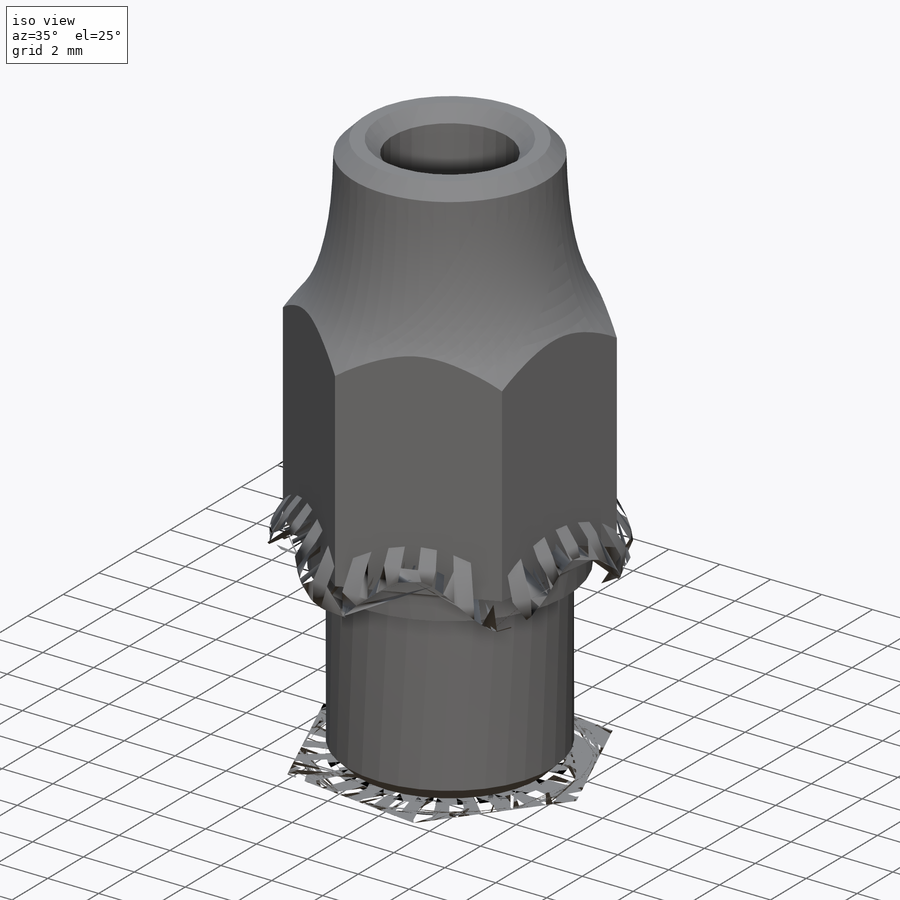
[diagram: iso view]
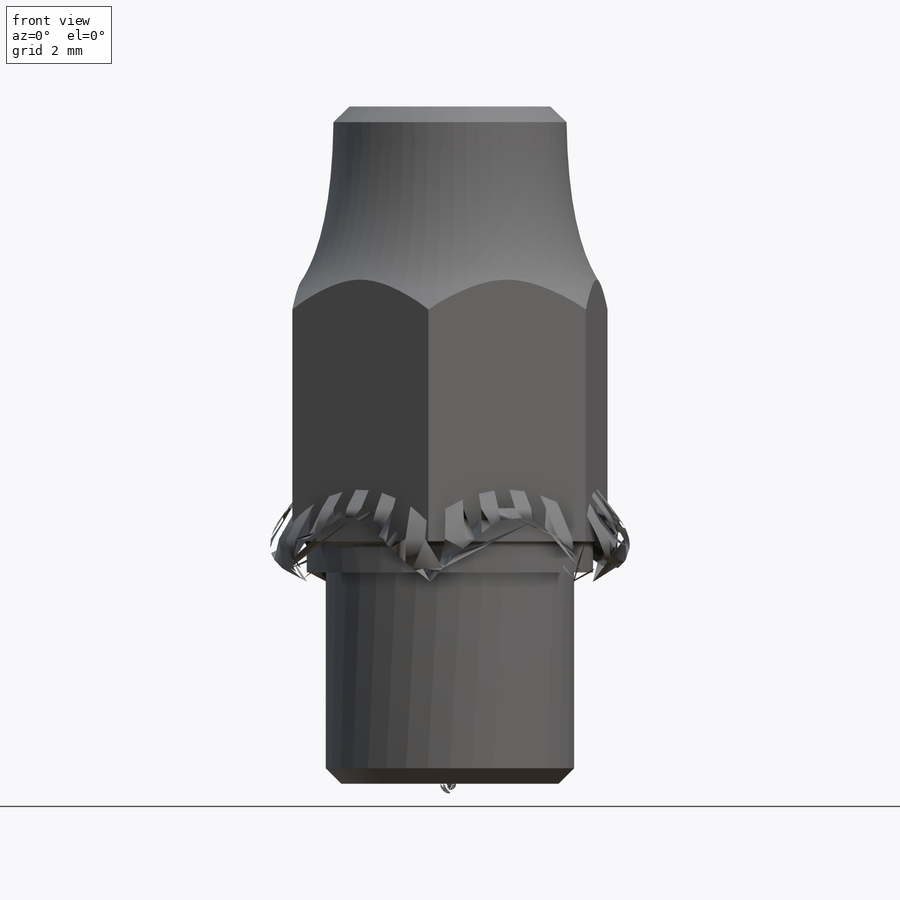
[diagram: front view]
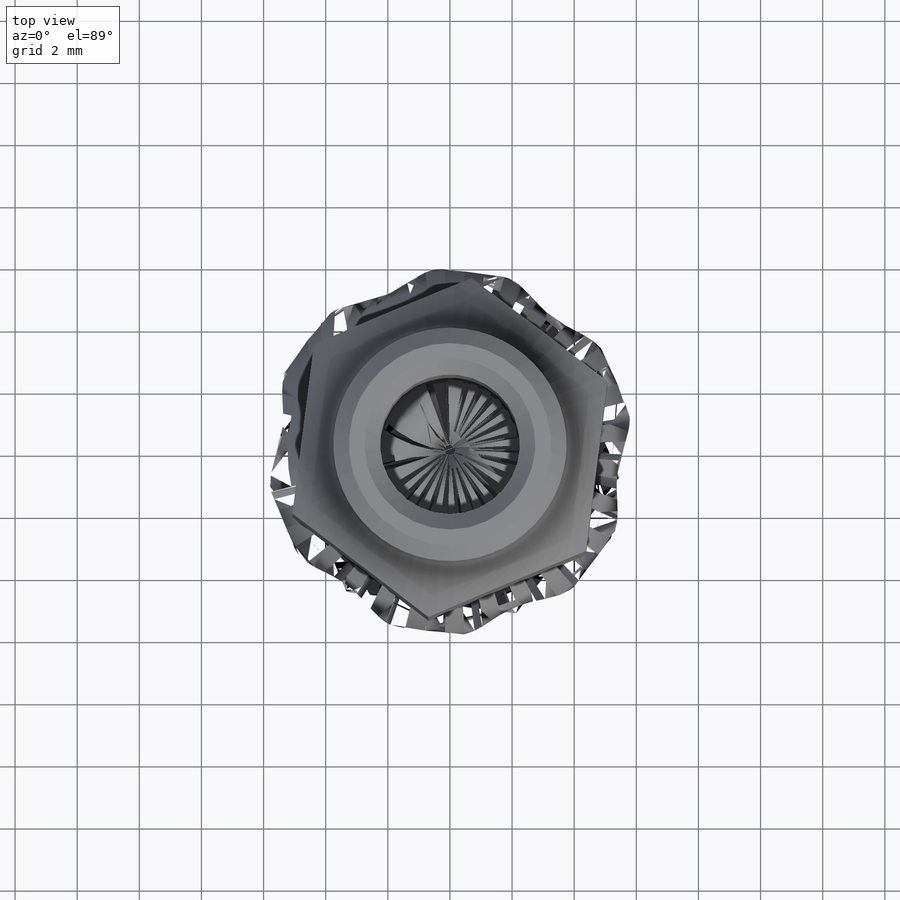
[diagram: top view]
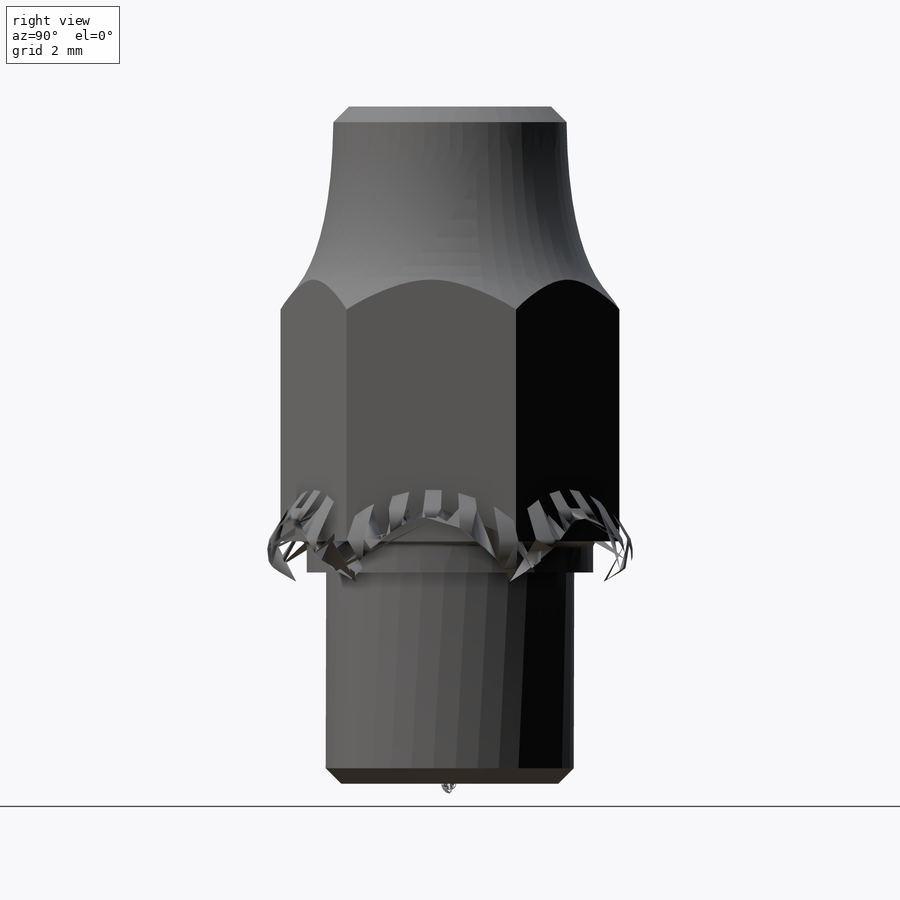
[diagram: right view]
SOLIDWORKS PART (.sldprt)
format: sldprt  version: not decoded by parser v0  size: 633,344 bytes
history: native  units: mm
features: sketch x7, plane x3, extrude x3, cut_extrude x3, material x1, cut_revolve x1, chamfer x1, fillet x1 (+9 scaffold rows collapsed)
feature tree (29):
  scaffold x9  (default folders/planes/origin — collapsed)
  material  "Acier allié inoxydable"
  plane  "Plan de face"
  plane  "Plan de dessus"
  plane  "Plan de droite"
  sketch  "Esquisse1"  dims[D1=8.0mm]
  extrude  "Boss.-Extru.1"  Depth=7.8mm
  sketch  "Esquisse2"  dims[D1=11.0mm]
  extrude  "Boss.-Extru.2"  Depth=14mm
  sketch  "Esquisse3"
  cut_extrude  "Enlèv. mat.-Extru.1"  Depth=14mm
  sketch  "Esquisse4"  dims[D1=~8.383376mm D2=3.75mm D3=6.0mm]
  cut_revolve  "Enlèvement de matière-Révolution1"  Angle=360deg
  sketch  "Esquisse5"  dims[D1=4.5mm]
  cut_extrude  "Enlèv. mat.-Extru.2"  Depth=20mm
  sketch  "Esquisse6"  dims[D1=3.44mm]
  cut_extrude  "Enlèv. mat.-Extru.3"  Depth=20mm
  sketch  "Esquisse7"  dims[D1=~9.22152mm]
  extrude  "Boss.-Extru.3"  Depth=1mm
  chamfer  "Chanfrein1"  Distance=0.5mm Angle=45deg
  fillet  "Congé1"  Radius=0.2mm
decode coverage: 15 of 16 modeling features carry decoded parameters
note: ~ marks probable driven/reference dimensions
note: suppression state not decoded; provenance and decode notes live in map.json
